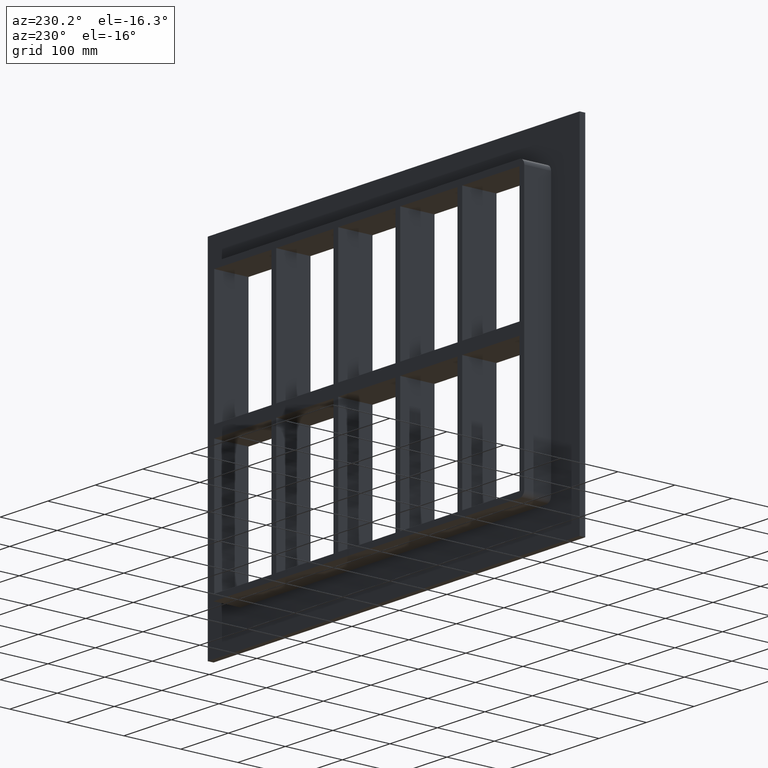
[diagram: clean part render]
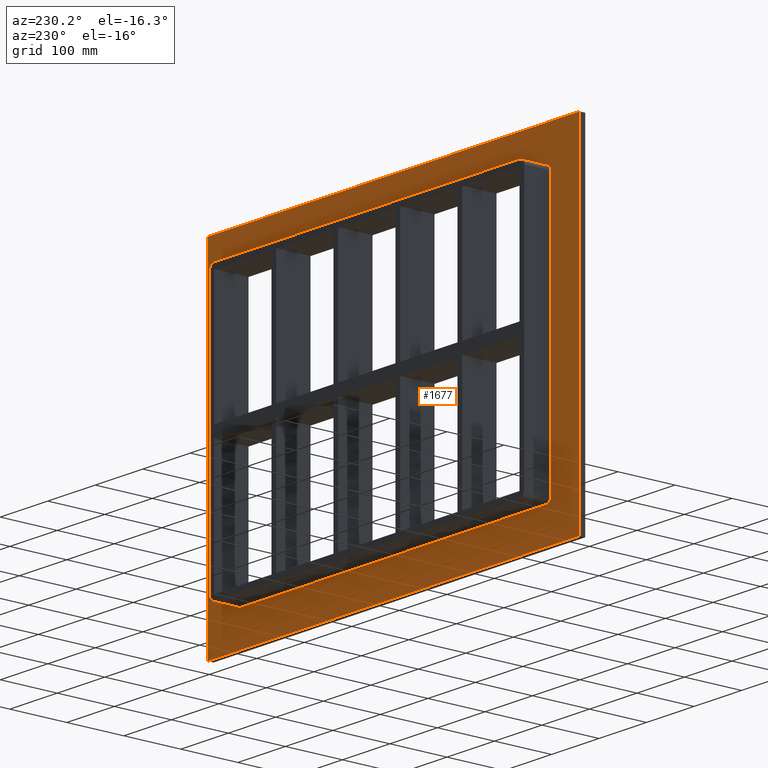
[diagram: same view with one face highlighted and labeled with its STEP entity id]
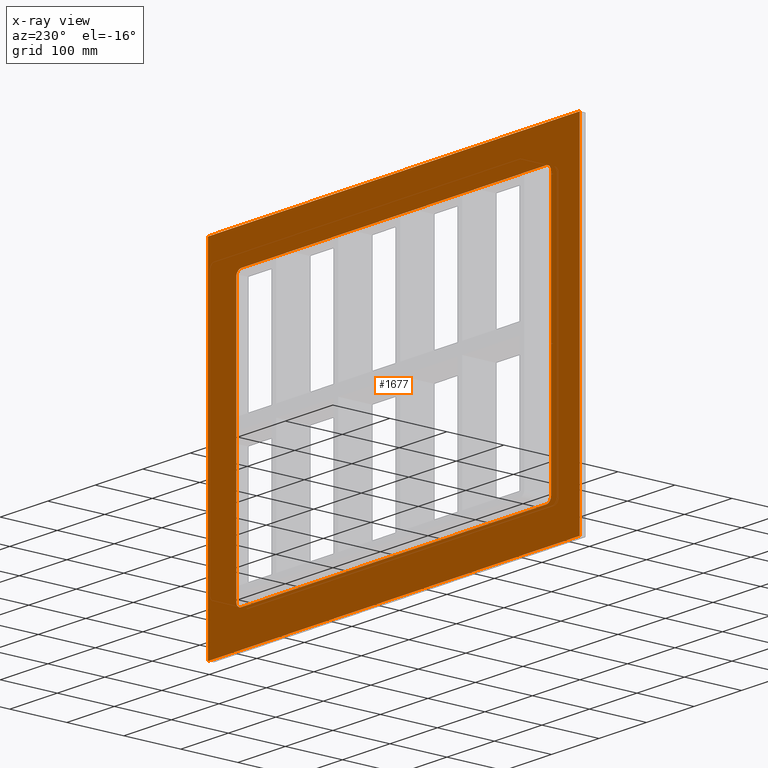
[diagram: x-ray of the same camera — body ghosted, the highlighted face saturated]
A machine part, auxiliary view. The second image highlights one B-rep face of the part: STEP entity #1677.
The next image is the same camera in x-ray: the body ghosted, the highlighted face saturated — about 0% of this face is hidden behind the body in this view.
In plain terms, the highlighted planar face has unit normal (0, 1, 0).
Its self-contained STEP definition (entity closure, byte-faithful):
#1568=CARTESIAN_POINT('',(-3.711213E-014,10.0,0.0));
#1569=DIRECTION('',(0.0,1.0,0.0));
#1570=DIRECTION('',(0.0,0.0,1.0));
#1571=AXIS2_PLACEMENT_3D('',#1568,#1569,#1570);
#1572=PLANE('',#1571);
#1573=CARTESIAN_POINT('',(-391.25000000000006,10.0,298.0));
#1574=VERTEX_POINT('',#1573);
#1575=CARTESIAN_POINT('',(391.24999999999994,10.0,298.0));
#1576=VERTEX_POINT('',#1575);
#1577=CARTESIAN_POINT('',(-391.25000000000006,10.0,298.0));
#1578=DIRECTION('',(1.0,0.0,0.0));
#1579=VECTOR('',#1578,782.5);
#1580=LINE('',#1577,#1579);
#1581=EDGE_CURVE('',#1574,#1576,#1580,.T.);
#1582=ORIENTED_EDGE('',*,*,#1581,.T.);
#1583=CARTESIAN_POINT('',(391.24999999999994,10.0,-298.0));
#1584=VERTEX_POINT('',#1583);
#1585=CARTESIAN_POINT('',(391.25,10.0,298.0));
#1586=DIRECTION('',(0.0,0.0,-1.0));
#1587=VECTOR('',#1586,596.0);
#1588=LINE('',#1585,#1587);
#1589=EDGE_CURVE('',#1576,#1584,#1588,.T.);
#1590=ORIENTED_EDGE('',*,*,#1589,.T.);
#1591=CARTESIAN_POINT('',(-391.25000000000006,10.0,-298.0));
#1592=VERTEX_POINT('',#1591);
#1593=CARTESIAN_POINT('',(391.25,10.0,-298.0));
#1594=DIRECTION('',(-1.0,0.0,0.0));
#1595=VECTOR('',#1594,782.5);
#1596=LINE('',#1593,#1595);
#1597=EDGE_CURVE('',#1584,#1592,#1596,.T.);
#1598=ORIENTED_EDGE('',*,*,#1597,.T.);
#1599=CARTESIAN_POINT('',(-391.25000000000006,10.0,-298.0));
#1600=DIRECTION('',(0.0,0.0,1.0));
#1601=VECTOR('',#1600,596.0);
#1602=LINE('',#1599,#1601);
#1603=EDGE_CURVE('',#1592,#1574,#1602,.T.);
#1604=ORIENTED_EDGE('',*,*,#1603,.T.);
#1605=EDGE_LOOP('',(#1582,#1590,#1598,#1604));
#1606=FACE_OUTER_BOUND('',#1605,.T.);
#1607=CARTESIAN_POINT('',(-321.25,10.0,-238.0));
#1608=VERTEX_POINT('',#1607);
#1609=CARTESIAN_POINT('',(-331.25,10.0,-228.0));
#1610=VERTEX_POINT('',#1609);
#1611=CARTESIAN_POINT('',(-321.25,10.0,-228.0));
#1612=DIRECTION('',(0.0,1.0,0.0));
#1613=DIRECTION('',(-0.707106781186547,0.0,-0.707106781186547));
#1614=AXIS2_PLACEMENT_3D('',#1611,#1612,#1613);
#1615=CIRCLE('',#1614,9.999999999999998);
#1616=EDGE_CURVE('',#1608,#1610,#1615,.T.);
#1617=ORIENTED_EDGE('',*,*,#1616,.F.);
#1618=CARTESIAN_POINT('',(321.25,10.0,-238.0));
#1619=VERTEX_POINT('',#1618);
#1620=CARTESIAN_POINT('',(321.25,10.0,-238.0));
#1621=DIRECTION('',(-1.0,0.0,0.0));
#1622=VECTOR('',#1621,642.5);
#1623=LINE('',#1620,#1622);
#1624=EDGE_CURVE('',#1619,#1608,#1623,.T.);
#1625=ORIENTED_EDGE('',*,*,#1624,.F.);
#1626=CARTESIAN_POINT('',(331.25,10.0,-228.0));
#1627=VERTEX_POINT('',#1626);
#1628=CARTESIAN_POINT('',(321.25,10.0,-228.0));
#1629=DIRECTION('',(0.0,1.0,0.0));
#1630=DIRECTION('',(0.707106781186547,0.0,-0.707106781186547));
#1631=AXIS2_PLACEMENT_3D('',#1628,#1629,#1630);
#1632=CIRCLE('',#1631,9.999999999999998);
#1633=EDGE_CURVE('',#1627,#1619,#1632,.T.);
#1634=ORIENTED_EDGE('',*,*,#1633,.F.);
#1635=CARTESIAN_POINT('',(331.25,10.0,228.0));
#1636=VERTEX_POINT('',#1635);
#1637=CARTESIAN_POINT('',(331.25,10.0,228.0));
#1638=DIRECTION('',(0.0,0.0,-1.0));
#1639=VECTOR('',#1638,456.0);
#1640=LINE('',#1637,#1639);
#1641=EDGE_CURVE('',#1636,#1627,#1640,.T.);
#1642=ORIENTED_EDGE('',*,*,#1641,.F.);
#1643=CARTESIAN_POINT('',(321.25,10.0,238.0));
#1644=VERTEX_POINT('',#1643);
#1645=CARTESIAN_POINT('',(321.25,10.0,228.0));
#1646=DIRECTION('',(0.0,1.0,0.0));
#1647=DIRECTION('',(0.707106781186547,0.0,0.707106781186547));
#1648=AXIS2_PLACEMENT_3D('',#1645,#1646,#1647);
#1649=CIRCLE('',#1648,9.999999999999998);
#1650=EDGE_CURVE('',#1644,#1636,#1649,.T.);
#1651=ORIENTED_EDGE('',*,*,#1650,.F.);
#1652=CARTESIAN_POINT('',(-321.25,10.0,238.0));
#1653=VERTEX_POINT('',#1652);
#1654=CARTESIAN_POINT('',(-321.25,10.0,238.0));
#1655=DIRECTION('',(1.0,0.0,0.0));
#1656=VECTOR('',#1655,642.5);
#1657=LINE('',#1654,#1656);
#1658=EDGE_CURVE('',#1653,#1644,#1657,.T.);
#1659=ORIENTED_EDGE('',*,*,#1658,.F.);
#1660=CARTESIAN_POINT('',(-331.25,10.0,228.0));
#1661=VERTEX_POINT('',#1660);
#1662=CARTESIAN_POINT('',(-321.25,10.0,228.0));
#1663=DIRECTION('',(0.0,1.0,0.0));
#1664=DIRECTION('',(-0.707106781186547,0.0,0.707106781186547));
#1665=AXIS2_PLACEMENT_3D('',#1662,#1663,#1664);
#1666=CIRCLE('',#1665,9.999999999999998);
#1667=EDGE_CURVE('',#1661,#1653,#1666,.T.);
#1668=ORIENTED_EDGE('',*,*,#1667,.F.);
#1669=CARTESIAN_POINT('',(-331.25,10.0,-228.0));
#1670=DIRECTION('',(0.0,0.0,1.0));
#1671=VECTOR('',#1670,456.0);
#1672=LINE('',#1669,#1671);
#1673=EDGE_CURVE('',#1610,#1661,#1672,.T.);
#1674=ORIENTED_EDGE('',*,*,#1673,.F.);
#1675=EDGE_LOOP('',(#1617,#1625,#1634,#1642,#1651,#1659,#1668,#1674));
#1676=FACE_BOUND('',#1675,.T.);
#1677=ADVANCED_FACE('',(#1606,#1676),#1572,.T.);